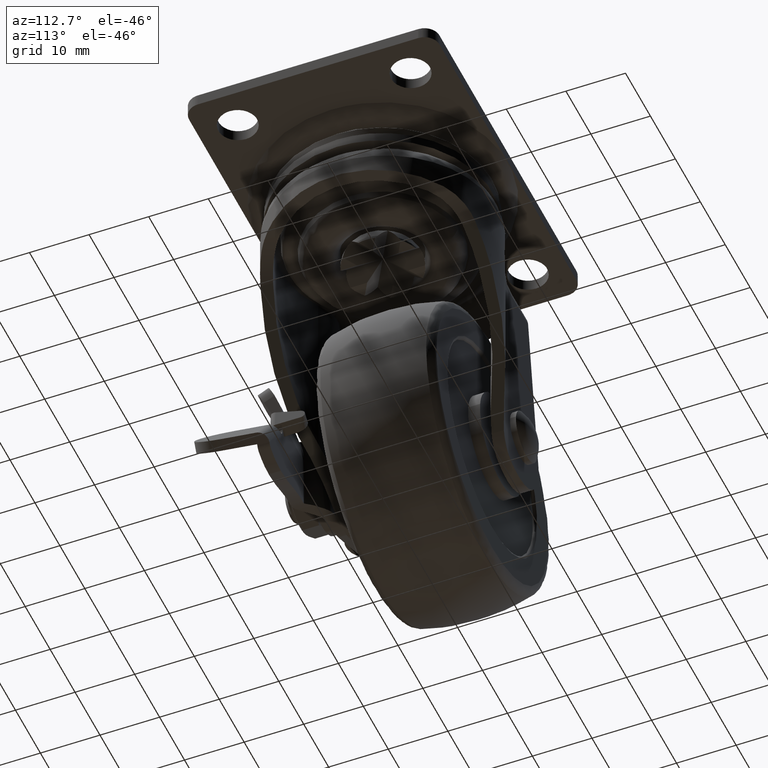
[diagram: clean part render]
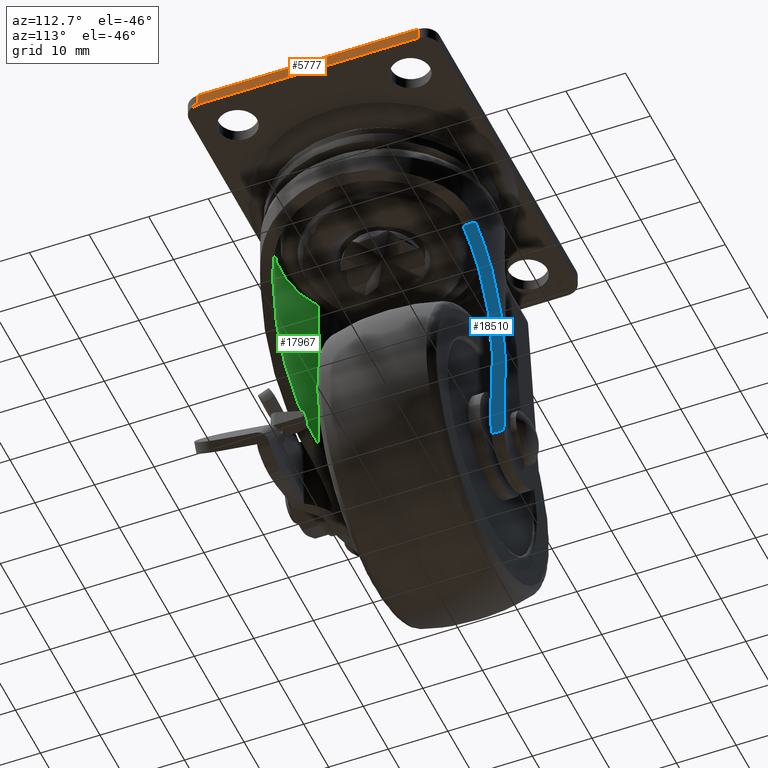
[diagram: same view with three faces highlighted in distinct colors, each labeled with its STEP entity id]
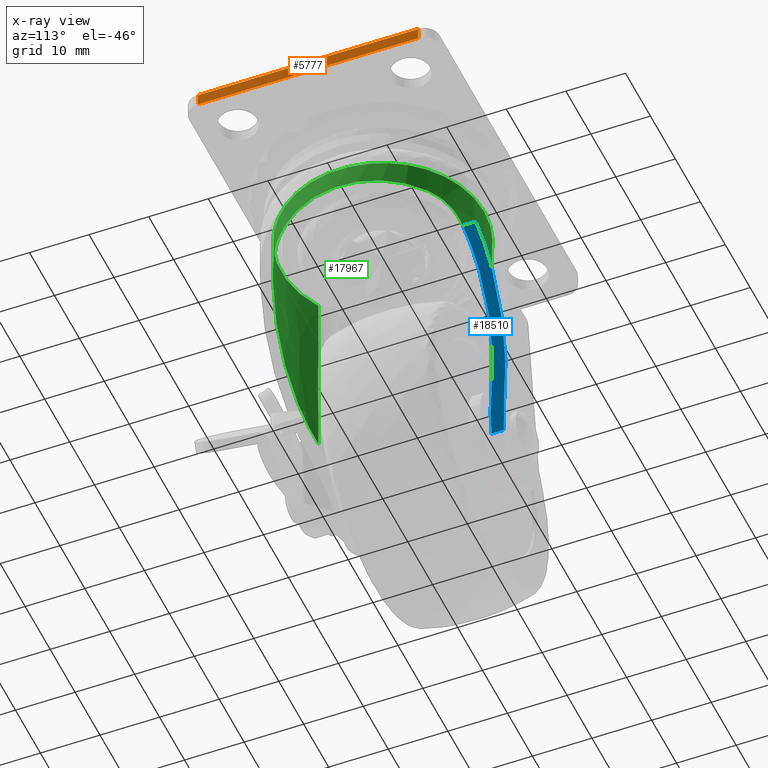
[diagram: x-ray of the same camera — body ghosted, the three highlighted faces saturated]
A machine part, auxiliary view with three faces highlighted in distinct colors.
The next image is the same camera in x-ray (body ghosted, the three faces saturated) — at least one of them is partly hidden behind the body in this view.
Their STEP definitions:

[orange] entity #5777 — the highlighted face is a freeform B-spline surface patch.
#5511=CARTESIAN_POINT('',(29.999993000000000,18.500000000000000,0.0));
#5512=VERTEX_POINT('',#5511);
#5579=CARTESIAN_POINT('',(29.999993000000000,-18.500000000000000,0.0));
#5580=VERTEX_POINT('',#5579);
#5594=CARTESIAN_POINT('',(29.999993000000000,-18.500000000000000,0.0));
#5595=CARTESIAN_POINT('',(29.999993000000000,18.500000000000000,0.0));
#5596=QUASI_UNIFORM_CURVE('',1,(#5594,#5595),.UNSPECIFIED.,.F.,.U.);
#5597=EDGE_CURVE('',#5580,#5512,#5596,.T.);
#5637=CARTESIAN_POINT('',(29.999993000000000,18.500000000000000,-1.999963000000160));
#5638=VERTEX_POINT('',#5637);
#5654=CARTESIAN_POINT('',(29.999993000000000,-18.500000000000000,-1.999963000000160));
#5655=VERTEX_POINT('',#5654);
#5656=CARTESIAN_POINT('',(29.999993000000000,-18.500000000000000,-1.999963000000160));
#5657=CARTESIAN_POINT('',(29.999993000000000,18.500000000000000,-1.999963000000160));
#5658=QUASI_UNIFORM_CURVE('',1,(#5656,#5657),.UNSPECIFIED.,.F.,.U.);
#5659=EDGE_CURVE('',#5655,#5638,#5658,.T.);
#5758=CARTESIAN_POINT('',(29.999993000000000,-20.348149928286819,-2.099861204296517));
#5759=CARTESIAN_POINT('',(29.999993000000000,20.348150920704160,-2.099861204296517));
#5760=CARTESIAN_POINT('',(29.999993000000000,-20.348149928286819,0.099898204296357));
#5761=CARTESIAN_POINT('',(29.999993000000000,20.348150920704160,0.099898204296357));
#5762=B_SPLINE_SURFACE_WITH_KNOTS('',1,1,((#5758,#5760),(#5759,#5761)),.UNSPECIFIED.,.F.,.F.,.U.,(2,2),(2,2),(0.0,40.696300848990980),(0.0,2.199759408592874),.UNSPECIFIED.);
#5763=ORIENTED_EDGE('',*,*,#5597,.F.);
#5764=CARTESIAN_POINT('',(29.999993000000000,-18.500000000000000,-1.999963000000160));
#5765=CARTESIAN_POINT('',(29.999993000000000,-18.500000000000000,0.0));
#5766=QUASI_UNIFORM_CURVE('',1,(#5764,#5765),.UNSPECIFIED.,.F.,.U.);
#5767=EDGE_CURVE('',#5655,#5580,#5766,.T.);
#5768=ORIENTED_EDGE('',*,*,#5767,.F.);
#5769=ORIENTED_EDGE('',*,*,#5659,.T.);
#5770=CARTESIAN_POINT('',(29.999993000000000,18.500000000000000,-1.999963000000160));
#5771=CARTESIAN_POINT('',(29.999993000000000,18.500000000000000,0.0));
#5772=QUASI_UNIFORM_CURVE('',1,(#5770,#5771),.UNSPECIFIED.,.F.,.U.);
#5773=EDGE_CURVE('',#5638,#5512,#5772,.T.);
#5774=ORIENTED_EDGE('',*,*,#5773,.T.);
#5775=EDGE_LOOP('',(#5763,#5768,#5769,#5774));
#5776=FACE_OUTER_BOUND('',#5775,.T.);
#5777=ADVANCED_FACE('',(#5776),#5762,.T.);

[blue] entity #18510 — the highlighted face is a freeform B-spline surface patch.
#17754=CARTESIAN_POINT('',(-8.856239896303009,14.510660103563101,-42.202124249578603));
#17755=VERTEX_POINT('',#17754);
#17785=CARTESIAN_POINT('',(-12.362730045456900,13.071722964153160,-47.507164106145197));
#17786=VERTEX_POINT('',#17785);
#17802=CARTESIAN_POINT('',(-12.362730045456850,13.071722964153160,-47.507164106145112));
#17803=CARTESIAN_POINT('',(-10.494417314606391,13.510787621721423,-44.680555993732753));
#17804=CARTESIAN_POINT('',(-8.856239896302983,14.510660103563101,-42.202124249578588));
#17812=(BOUNDED_CURVE()B_SPLINE_CURVE(2,(#17802,#17803,#17804),.UNSPECIFIED.,.F.,.U.)CURVE()GEOMETRIC_REPRESENTATION_ITEM()QUASI_UNIFORM_CURVE()RATIONAL_B_SPLINE_CURVE((1.0,0.987450760677041,1.0))REPRESENTATION_ITEM(''));
#17813=EDGE_CURVE('',#17786,#17755,#17812,.T.);
#17859=CARTESIAN_POINT('',(5.947976629990610,15.925664326638600,-19.804525689040801));
#17860=VERTEX_POINT('',#17859);
#17861=CARTESIAN_POINT('',(-8.856239896303002,14.510660103563101,-42.202124249578667));
#17862=CARTESIAN_POINT('',(-1.798260388782855,18.818544834559166,-31.523964322832743));
#17863=CARTESIAN_POINT('',(5.947976629990610,15.925664326638600,-19.804525689040801));
#17871=(BOUNDED_CURVE()B_SPLINE_CURVE(2,(#17861,#17862,#17863),.UNSPECIFIED.,.F.,.U.)CURVE()GEOMETRIC_REPRESENTATION_ITEM()QUASI_UNIFORM_CURVE()RATIONAL_B_SPLINE_CURVE((1.0,0.899265817464225,1.0))REPRESENTATION_ITEM(''));
#17872=EDGE_CURVE('',#17755,#17860,#17871,.T.);
#18134=CARTESIAN_POINT('',(-9.898202001750439,16.217796586335201,-43.778529789963400));
#18135=VERTEX_POINT('',#18134);
#18141=CARTESIAN_POINT('',(-12.362730045456900,15.137688648611650,-47.507164106145197));
#18142=VERTEX_POINT('',#18141);
#18143=CARTESIAN_POINT('',(-12.362730045456839,15.137688648611650,-47.507164106145098));
#18144=CARTESIAN_POINT('',(-11.057139844038272,15.510431166862706,-45.531910288152908));
#18145=CARTESIAN_POINT('',(-9.898202001750436,16.217796586335201,-43.778529789963343));
#18153=(BOUNDED_CURVE()B_SPLINE_CURVE(2,(#18143,#18144,#18145),.UNSPECIFIED.,.F.,.U.)CURVE()GEOMETRIC_REPRESENTATION_ITEM()QUASI_UNIFORM_CURVE()RATIONAL_B_SPLINE_CURVE((1.0,0.990908003253391,1.0))REPRESENTATION_ITEM(''));
#18154=EDGE_CURVE('',#18142,#18135,#18153,.T.);
#18310=CARTESIAN_POINT('',(5.947976629990610,18.045131871082852,-19.804525689040801));
#18311=VERTEX_POINT('',#18310);
#18335=CARTESIAN_POINT('',(-9.898202001750471,16.217796586335190,-43.778529789963443));
#18336=CARTESIAN_POINT('',(-2.397672616479314,20.795794578362507,-32.430827203713896));
#18337=CARTESIAN_POINT('',(5.947976629990610,18.045131871082852,-19.804525689040801));
#18345=(BOUNDED_CURVE()B_SPLINE_CURVE(2,(#18335,#18336,#18337),.UNSPECIFIED.,.F.,.U.)CURVE()GEOMETRIC_REPRESENTATION_ITEM()QUASI_UNIFORM_CURVE()RATIONAL_B_SPLINE_CURVE((1.0,0.907631338041536,1.0))REPRESENTATION_ITEM(''));
#18346=EDGE_CURVE('',#18135,#18311,#18345,.T.);
#18489=CARTESIAN_POINT('',(6.862596564827369,12.775618120473530,-18.420778693747000));
#18490=CARTESIAN_POINT('',(-13.277350307714570,12.775618120473530,-48.890911596800812));
#18491=CARTESIAN_POINT('',(6.862596564827369,19.295853095135360,-18.420778693747000));
#18492=CARTESIAN_POINT('',(-13.277350307714570,19.295853095135360,-48.890911596800812));
#18493=B_SPLINE_SURFACE_WITH_KNOTS('',1,1,((#18489,#18491),(#18490,#18492)),.UNSPECIFIED.,.F.,.F.,.U.,(2,2),(2,2),(0.0,36.524600739208282),(0.0,6.520234974661836),.UNSPECIFIED.);
#18494=CARTESIAN_POINT('',(5.947976629990610,18.045131871082852,-19.804525689040801));
#18495=CARTESIAN_POINT('',(5.947976629990610,15.925664326638600,-19.804525689040801));
#18496=QUASI_UNIFORM_CURVE('',1,(#18494,#18495),.UNSPECIFIED.,.F.,.U.);
#18497=EDGE_CURVE('',#18311,#17860,#18496,.T.);
#18498=ORIENTED_EDGE('',*,*,#18497,.T.);
#18499=ORIENTED_EDGE('',*,*,#17872,.F.);
#18500=ORIENTED_EDGE('',*,*,#17813,.F.);
#18501=CARTESIAN_POINT('',(-12.362730045456900,15.137688648611650,-47.507164106145197));
#18502=CARTESIAN_POINT('',(-12.362730045456900,13.071722964153160,-47.507164106145197));
#18503=QUASI_UNIFORM_CURVE('',1,(#18501,#18502),.UNSPECIFIED.,.F.,.U.);
#18504=EDGE_CURVE('',#18142,#17786,#18503,.T.);
#18505=ORIENTED_EDGE('',*,*,#18504,.F.);
#18506=ORIENTED_EDGE('',*,*,#18154,.T.);
#18507=ORIENTED_EDGE('',*,*,#18346,.T.);
#18508=EDGE_LOOP('',(#18498,#18499,#18500,#18505,#18506,#18507));
#18509=FACE_OUTER_BOUND('',#18508,.T.);
#18510=ADVANCED_FACE('',(#18509),#18493,.T.);

[green] entity #17967 — the highlighted face is a freeform B-spline surface patch.
#17685=CARTESIAN_POINT('',(-8.856239896303020,-14.510660103563101,-11.371275000000020));
#17686=VERTEX_POINT('',#17685);
#17700=CARTESIAN_POINT('',(-8.856239896303020,-14.510660103563101,-42.202124249578603));
#17701=VERTEX_POINT('',#17700);
#17702=CARTESIAN_POINT('',(-8.856239896303020,-14.510660103563101,-11.371275000000020));
#17703=CARTESIAN_POINT('',(-8.856239896303020,-14.510660103563101,-42.202124249578603));
#17704=QUASI_UNIFORM_CURVE('',1,(#17702,#17703),.UNSPECIFIED.,.F.,.U.);
#17705=EDGE_CURVE('',#17686,#17701,#17704,.T.);
#17754=CARTESIAN_POINT('',(-8.856239896303009,14.510660103563101,-42.202124249578603));
#17755=VERTEX_POINT('',#17754);
#17756=CARTESIAN_POINT('',(-8.856239896303009,14.510660103563101,-11.371275000000020));
#17757=VERTEX_POINT('',#17756);
#17758=CARTESIAN_POINT('',(-8.856239896303009,14.510660103563101,-42.202124249578603));
#17759=CARTESIAN_POINT('',(-8.856239896303009,14.510660103563101,-11.371275000000020));
#17760=QUASI_UNIFORM_CURVE('',1,(#17758,#17759),.UNSPECIFIED.,.F.,.U.);
#17761=EDGE_CURVE('',#17755,#17757,#17760,.T.);
#17818=CARTESIAN_POINT('',(-9.283772160463466,14.240907334027099,-42.972895480818067));
#17819=CARTESIAN_POINT('',(-9.283772160463466,14.240907334027099,-10.581234487979570));
#17820=CARTESIAN_POINT('',(3.315518348150336,22.454882624436124,-42.972895480818067));
#17821=CARTESIAN_POINT('',(3.315518348150336,22.454882624436124,-10.581234487979568));
#17822=CARTESIAN_POINT('',(13.003735173978191,10.950537092088711,-42.972895480818067));
#17823=CARTESIAN_POINT('',(13.003735173978191,10.950537092088711,-10.581234487979570));
#17824=CARTESIAN_POINT('',(22.691951999806051,-0.553808440258699,-42.972895480818067));
#17825=CARTESIAN_POINT('',(22.691951999806051,-0.553808440258699,-10.581234487979568));
#17826=CARTESIAN_POINT('',(12.454054737852941,-11.571837803333960,-42.972895480818067));
#17827=CARTESIAN_POINT('',(12.454054737852941,-11.571837803333960,-10.581234487979570));
#17828=CARTESIAN_POINT('',(2.216157475899829,-22.589867166409228,-42.972895480818067));
#17829=CARTESIAN_POINT('',(2.216157475899829,-22.589867166409228,-10.581234487979568));
#17830=CARTESIAN_POINT('',(-9.967430984255195,-13.771041642255060,-42.972895480818067));
#17831=CARTESIAN_POINT('',(-9.967430984255195,-13.771041642255060,-10.581234487979570));
#17839=(BOUNDED_SURFACE()B_SPLINE_SURFACE(1,2,((#17818,#17820,#17822,#17824,#17826,#17828,#17830),(#17819,#17821,#17823,#17825,#17827,#17829,#17831)),.UNSPECIFIED.,.F.,.F.,.U.)B_SPLINE_SURFACE_WITH_KNOTS((2,2),(3,2,2,3),(0.0,32.391660992838503),(0.0,25.762895391281351,51.525790782562702,77.288686173844056),.UNSPECIFIED.)GEOMETRIC_REPRESENTATION_ITEM()RATIONAL_B_SPLINE_SURFACE(((1.0,0.748955720789002,1.0,0.748955720789002,1.0,0.748955720789002,1.0),(1.0,0.748955720789002,1.0,0.748955720789002,1.0,0.748955720789002,1.0)))REPRESENTATION_ITEM('')SURFACE());
#17840=ORIENTED_EDGE('',*,*,#17705,.F.);
#17841=CARTESIAN_POINT('',(-8.856239896303022,-14.510660103563090,-11.371275000000020));
#17842=CARTESIAN_POINT('',(3.522162096722574,-22.065900081671533,-11.371275000000018));
#17843=CARTESIAN_POINT('',(12.933883534598349,-11.032950040835770,-11.371275000000020));
#17844=CARTESIAN_POINT('',(22.345604972474117,-1.561251E-014,-11.371275000000018));
#17845=CARTESIAN_POINT('',(12.933883534598360,11.032950040835759,-11.371275000000020));
#17846=CARTESIAN_POINT('',(3.522162096722598,22.065900081671547,-11.371275000000018));
#17847=CARTESIAN_POINT('',(-8.856239896303016,14.510660103563090,-11.371275000000020));
#17855=(BOUNDED_CURVE()B_SPLINE_CURVE(2,(#17841,#17842,#17843,#17844,#17845,#17846,#17847),.UNSPECIFIED.,.F.,.U.)B_SPLINE_CURVE_WITH_KNOTS((3,2,2,3),(0.0,0.333333333333333,0.666666666666667,1.0),.UNSPECIFIED.)CURVE()GEOMETRIC_REPRESENTATION_ITEM()RATIONAL_B_SPLINE_CURVE((1.0,0.760790913799903,1.0,0.760790913799903,1.0,0.760790913799903,1.0))REPRESENTATION_ITEM(''));
#17856=EDGE_CURVE('',#17686,#17757,#17855,.T.);
#17857=ORIENTED_EDGE('',*,*,#17856,.T.);
#17858=ORIENTED_EDGE('',*,*,#17761,.F.);
#17859=CARTESIAN_POINT('',(5.947976629990610,15.925664326638600,-19.804525689040801));
#17860=VERTEX_POINT('',#17859);
#17861=CARTESIAN_POINT('',(-8.856239896303002,14.510660103563101,-42.202124249578667));
#17862=CARTESIAN_POINT('',(-1.798260388782855,18.818544834559166,-31.523964322832743));
#17863=CARTESIAN_POINT('',(5.947976629990610,15.925664326638600,-19.804525689040801));
#17871=(BOUNDED_CURVE()B_SPLINE_CURVE(2,(#17861,#17862,#17863),.UNSPECIFIED.,.F.,.U.)CURVE()GEOMETRIC_REPRESENTATION_ITEM()QUASI_UNIFORM_CURVE()RATIONAL_B_SPLINE_CURVE((1.0,0.899265817464225,1.0))REPRESENTATION_ITEM(''));
#17872=EDGE_CURVE('',#17755,#17860,#17871,.T.);
#17873=ORIENTED_EDGE('',*,*,#17872,.T.);
#17874=CARTESIAN_POINT('',(11.585635205794100,12.441189882919600,-16.072033567300700));
#17875=VERTEX_POINT('',#17874);
#17876=CARTESIAN_POINT('',(11.585635205794100,12.441189882919589,-16.072033567300711));
#17877=CARTESIAN_POINT('',(11.110853074120950,12.883305522740519,-16.159839640631500));
#17878=CARTESIAN_POINT('',(10.618926404351340,13.290660019525060,-16.291545172022921));
#17879=CARTESIAN_POINT('',(9.988323218861972,13.757425997950531,-16.528771668796139));
#17880=CARTESIAN_POINT('',(9.861422160864684,13.848653820303349,-16.579874678875409));
#17881=CARTESIAN_POINT('',(9.670025798285042,13.982314798527259,-16.662450935463660));
#17882=CARTESIAN_POINT('',(9.606020627641330,14.026358320283469,-16.690981627696289));
#17883=CARTESIAN_POINT('',(9.478390707881195,14.112914575402121,-16.749761604066180));
#17884=CARTESIAN_POINT('',(9.414681464026142,14.155487176167490,-16.780046122387471));
#17885=CARTESIAN_POINT('',(9.096746842231401,14.364884982496839,-16.936017580372582));
#17886=CARTESIAN_POINT('',(8.844347214920667,14.521321497789820,-17.075328898538519));
#17887=CARTESIAN_POINT('',(8.470356612746897,14.740466605722720,-17.307803753398058));
#17888=CARTESIAN_POINT('',(8.346462947750700,14.810928652116480,-17.389217660639879));
#17889=CARTESIAN_POINT('',(8.100525425479251,14.946849957972910,-17.560239063401589));
#17890=CARTESIAN_POINT('',(7.978317191340564,15.012394503268871,-17.649974205429949));
#17891=CARTESIAN_POINT('',(7.616029109838311,15.201215494208340,-17.931255090462649));
#17892=CARTESIAN_POINT('',(7.383352584581956,15.315123871231670,-18.132417905253732));
#17893=CARTESIAN_POINT('',(6.937372684139787,15.522222268167070,-18.562237049487191));
#17894=CARTESIAN_POINT('',(6.724062300202951,15.615408915624959,-18.790888129204369));
#17895=CARTESIAN_POINT('',(6.420191167002027,15.741626317121190,-19.155128093332859));
#17896=CARTESIAN_POINT('',(6.321587114171889,15.781434132816200,-19.280090879835129));
#17897=CARTESIAN_POINT('',(6.130073673461842,15.856801566603410,-19.537302058017900));
#17898=CARTESIAN_POINT('',(6.036942883019336,15.892439324792450,-19.669926845715800));
#17899=CARTESIAN_POINT('',(5.947976629990629,15.925664326638600,-19.804525689040819));
#17900=B_SPLINE_CURVE_WITH_KNOTS('',3,(#17876,#17877,#17878,#17879,#17880,#17881,#17882,#17883,#17884,#17885,#17886,#17887,#17888,#17889,#17890,#17891,#17892,#17893,#17894,#17895,#17896,#17897,#17898,#17899),.UNSPECIFIED.,.F.,.U.,(4,2,2,2,2,2,2,2,2,2,2,4),(0.0,0.249999999999997,0.312499999999997,0.343749999999996,0.374999999999996,0.499999999999997,0.562499999999998,0.624999999999998,0.749999999999999,0.874999999999999,0.937500000000000,1.0),.UNSPECIFIED.);
#17901=EDGE_CURVE('',#17875,#17860,#17900,.T.);
#17902=ORIENTED_EDGE('',*,*,#17901,.F.);
#17903=CARTESIAN_POINT('',(11.585635205794100,-12.441189882919600,-16.072033567300700));
#17904=VERTEX_POINT('',#17903);
#17905=CARTESIAN_POINT('',(11.585635205794100,12.441189882919600,-16.072033567300679));
#17906=CARTESIAN_POINT('',(17.000438000000027,7.398942413689673,-15.070621467935686));
#17907=CARTESIAN_POINT('',(17.000438000000031,4.163662E-015,-15.070621467935689));
#17908=CARTESIAN_POINT('',(17.000438000000027,-7.398942413689666,-15.070621467935686));
#17909=CARTESIAN_POINT('',(11.585635205794100,-12.441189882919600,-16.072033567300679));
#17917=(BOUNDED_CURVE()B_SPLINE_CURVE(2,(#17905,#17906,#17907,#17908,#17909),.UNSPECIFIED.,.F.,.U.)B_SPLINE_CURVE_WITH_KNOTS((3,2,3),(0.0,0.500000000000000,1.0),.UNSPECIFIED.)CURVE()GEOMETRIC_REPRESENTATION_ITEM()RATIONAL_B_SPLINE_CURVE((1.0,0.916919349936548,1.0,0.916919349936548,1.0))REPRESENTATION_ITEM(''));
#17918=EDGE_CURVE('',#17875,#17904,#17917,.T.);
#17919=ORIENTED_EDGE('',*,*,#17918,.T.);
#17920=CARTESIAN_POINT('',(5.947976629990610,-15.925664326638600,-19.804525689040801));
#17921=VERTEX_POINT('',#17920);
#17922=CARTESIAN_POINT('',(5.947976629990625,-15.925664326638630,-19.804525689040801));
#17923=CARTESIAN_POINT('',(5.992657304410272,-15.908978050218730,-19.736927393157469));
#17924=CARTESIAN_POINT('',(6.038304834660749,-15.891715604341140,-19.669941210157521));
#17925=CARTESIAN_POINT('',(6.130945410452606,-15.856208236925429,-19.537993619406521));
#17926=CARTESIAN_POINT('',(6.272148555608314,-15.801390009960230,-19.342768046739948));
#17927=CARTESIAN_POINT('',(6.419884178494844,-15.741751149969410,-19.155511863889359));
#17928=CARTESIAN_POINT('',(6.723615062126886,-15.615600027405650,-18.791392713055259));
#17929=CARTESIAN_POINT('',(6.937099931914439,-15.522353314653090,-18.562482661455721));
#17930=CARTESIAN_POINT('',(7.272367810839189,-15.366659351396990,-18.239389620635521));
#17931=CARTESIAN_POINT('',(7.386634730198929,-15.312119535812950,-18.135076309559501));
#17932=CARTESIAN_POINT('',(7.561650775293263,-15.226039802614411,-17.983669310385991));
#17933=CARTESIAN_POINT('',(7.620592250024141,-15.196634563651100,-17.934044438753020));
#17934=CARTESIAN_POINT('',(7.739657612832573,-15.136344758219000,-17.836484166002801));
#17935=CARTESIAN_POINT('',(7.799834096865675,-15.105431146119249,-17.788512501217841));
#17936=CARTESIAN_POINT('',(8.101495605720571,-14.948141658548890,-17.554487085604169));
#17937=CARTESIAN_POINT('',(8.346855865928285,-14.812832161498241,-17.384575591062820));
#17938=CARTESIAN_POINT('',(8.843055778097739,-14.522079694998000,-17.076128649313048));
#17939=CARTESIAN_POINT('',(9.093902454317581,-14.366637173492810,-16.937605000620131));
#17940=CARTESIAN_POINT('',(9.472625507338305,-14.117383032630549,-16.751526746463711));
#17941=CARTESIAN_POINT('',(9.599277511786548,-14.031615431476061,-16.693123542904100));
#17942=CARTESIAN_POINT('',(9.853144836398817,-13.854534260878330,-16.583305636226100));
#17943=CARTESIAN_POINT('',(9.980492555226499,-13.763122713052351,-16.531841524569131));
#17944=CARTESIAN_POINT('',(10.362165053407381,-13.480903361052031,-16.387897681140512));
#17945=CARTESIAN_POINT('',(10.612890986094650,-13.284519921475930,-16.307011195526560));
#17946=CARTESIAN_POINT('',(11.105858057718780,-12.875258182567730,-16.171037611068670));
#17947=CARTESIAN_POINT('',(11.348102140348891,-12.662379932422620,-16.115962865333621));
#17948=CARTESIAN_POINT('',(11.585635205794100,-12.441189882919589,-16.072033567300711));
#17949=B_SPLINE_CURVE_WITH_KNOTS('',3,(#17922,#17923,#17924,#17925,#17926,#17927,#17928,#17929,#17930,#17931,#17932,#17933,#17934,#17935,#17936,#17937,#17938,#17939,#17940,#17941,#17942,#17943,#17944,#17945,#17946,#17947,#17948),.UNSPECIFIED.,.F.,.U.,(4,2,1,2,2,2,2,2,2,2,2,2,2,4),(0.0,0.031250000000000,0.062500000000001,0.125000000000001,0.250000000000002,0.312500000000002,0.343750000000002,0.375000000000003,0.500000000000002,0.625000000000002,0.687500000000002,0.750000000000002,0.875000000000001,1.0),.UNSPECIFIED.);
#17950=EDGE_CURVE('',#17921,#17904,#17949,.T.);
#17951=ORIENTED_EDGE('',*,*,#17950,.F.);
#17952=CARTESIAN_POINT('',(5.947976629990666,-15.925664326638589,-19.804525689040840));
#17953=CARTESIAN_POINT('',(-1.798260388782816,-18.818544834559173,-31.523964322832693));
#17954=CARTESIAN_POINT('',(-8.856239896302981,-14.510660103563120,-42.202124249578631));
#17962=(BOUNDED_CURVE()B_SPLINE_CURVE(2,(#17952,#17953,#17954),.UNSPECIFIED.,.F.,.U.)CURVE()GEOMETRIC_REPRESENTATION_ITEM()QUASI_UNIFORM_CURVE()RATIONAL_B_SPLINE_CURVE((1.0,0.899265817464231,1.0))REPRESENTATION_ITEM(''));
#17963=EDGE_CURVE('',#17921,#17701,#17962,.T.);
#17964=ORIENTED_EDGE('',*,*,#17963,.T.);
#17965=EDGE_LOOP('',(#17840,#17857,#17858,#17873,#17902,#17919,#17951,#17964));
#17966=FACE_OUTER_BOUND('',#17965,.T.);
#17967=ADVANCED_FACE('',(#17966),#17839,.F.);